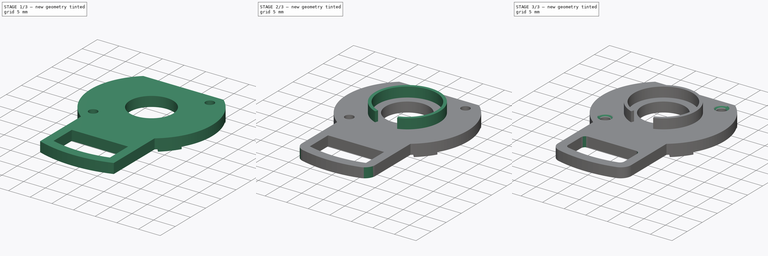
[diagram: build sequence overview — one tinted view per stage of 3, left to right]
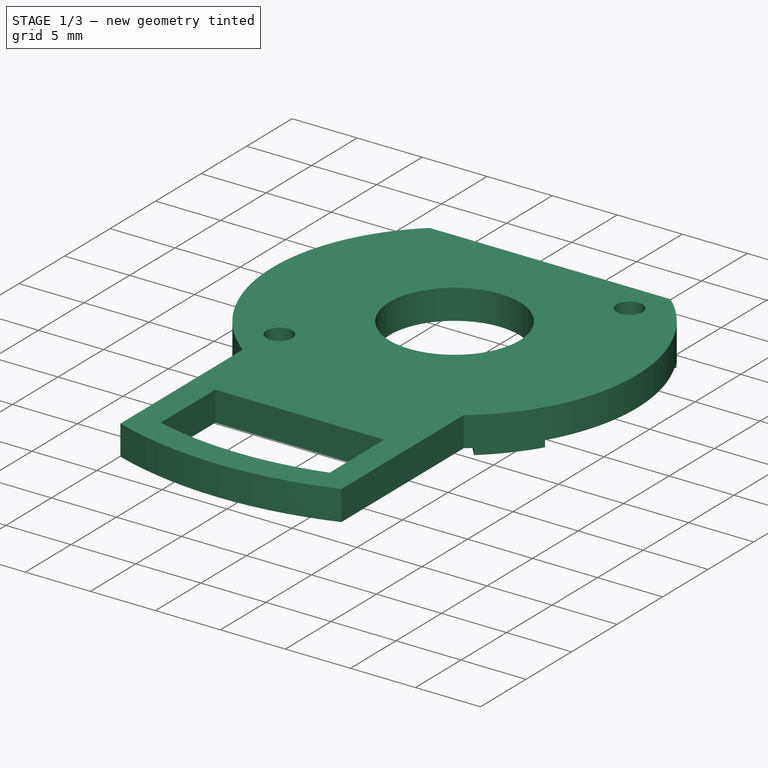
[diagram: stage 1 of 3 — iso view after this stage's code; geometry added in this stage tinted green]
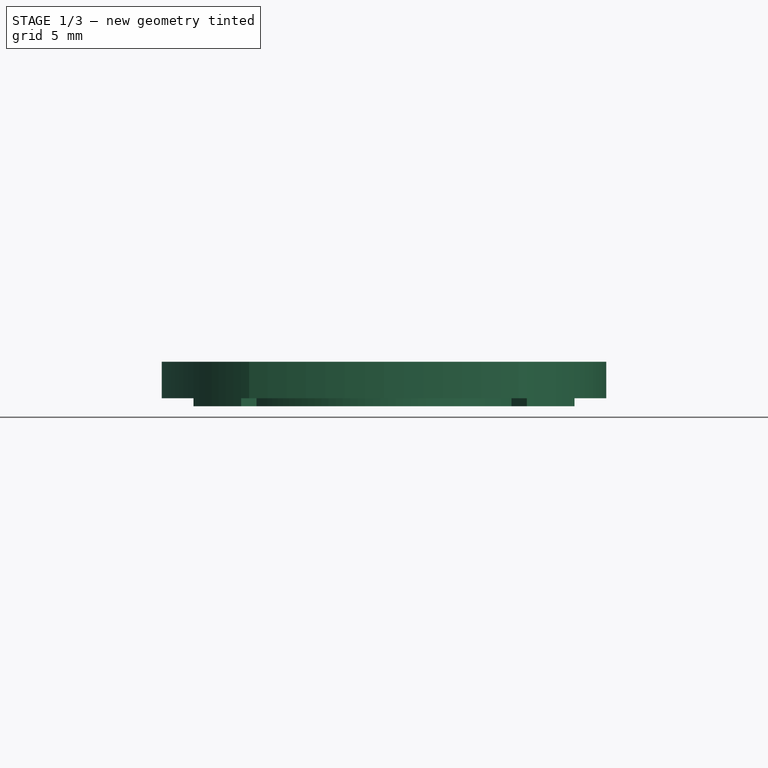
[diagram: stage 1 of 3 — front view after this stage's code; geometry added in this stage tinted green]
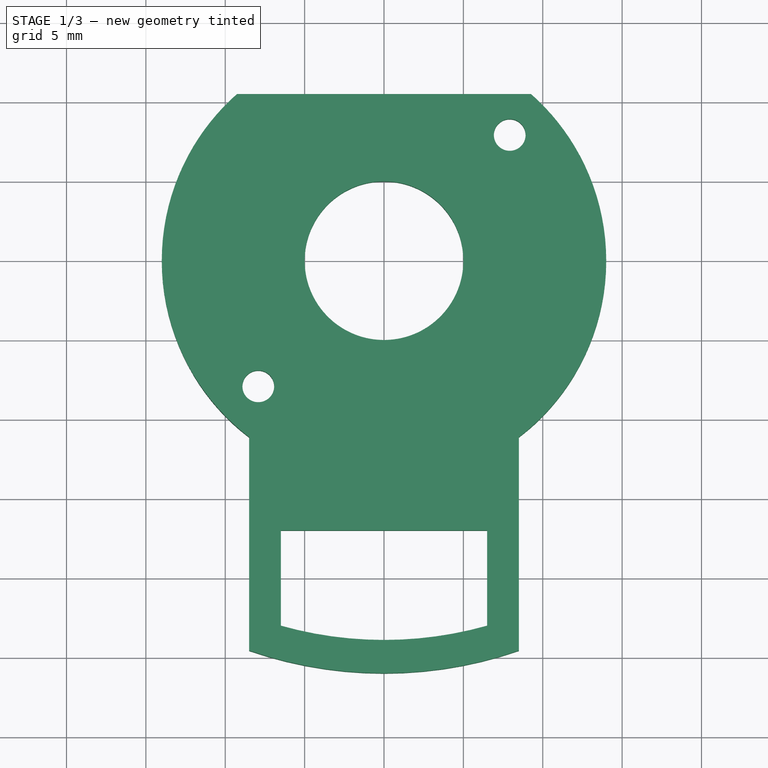
[diagram: stage 1 of 3 — top view after this stage's code; geometry added in this stage tinted green]
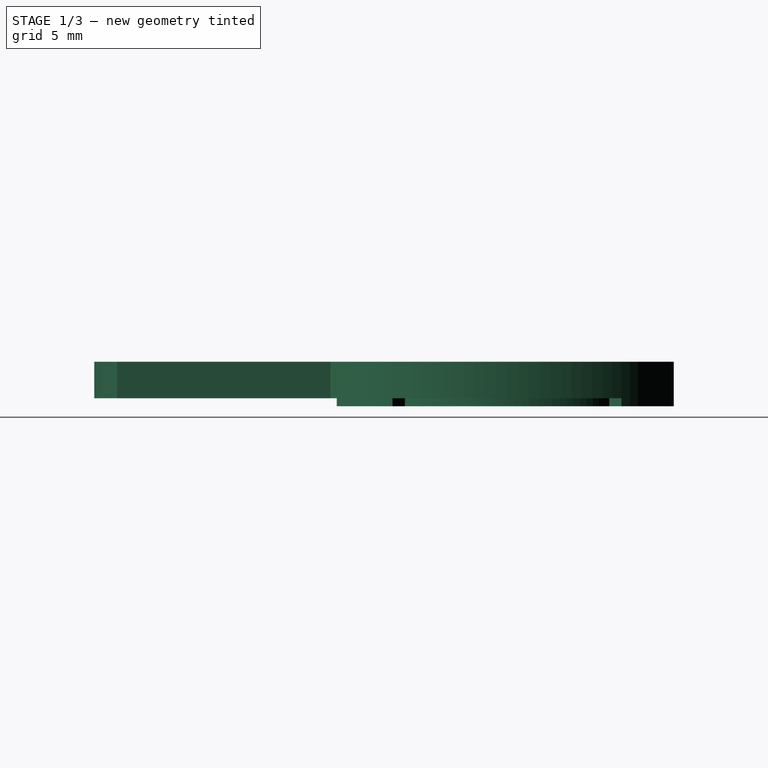
[diagram: stage 1 of 3 — right view after this stage's code; geometry added in this stage tinted green]
FCSTD DOCUMENT  (FreeCAD 0.20R27936 (Git))
Label: FP01-WDK02
License: All rights reserved
LicenseURL: http://en.wikipedia.org/wiki/All_rights_reserved
objects: Sketcher::SketchObject×4, PartDesign::Pad×3, PartDesign::Fillet×2, Part::Part2DObjectPython×1, PartDesign::Chamfer×1, PartDesign::Body×1, Part::Refine×1
note: 19 computed .brp shape members not serialized (recipe doc carries the construction recipe); baked Part::Feature solids carry a one-line shape summary decoded from their .brp

FEATURE [Sketcher::SketchObject] Sketch  label="Master Sketch"
  FullyConstrained = false
  sketch-geometry (26):
    g0: Circle CenterX=0 CenterY=0 CenterZ=0 NormalX=0 NormalY=0 NormalZ=1 AngleXU=0 Radius=14
    g1: Circle CenterX=0 CenterY=0 CenterZ=0 NormalX=0 NormalY=0 NormalZ=1 AngleXU=0 Radius=12.5
    g2: Circle CenterX=0 CenterY=0 CenterZ=0 NormalX=0 NormalY=0 NormalZ=1 AngleXU=0 Radius=9.6
    g3: Circle CenterX=0 CenterY=0 CenterZ=0 NormalX=0 NormalY=0 NormalZ=1 AngleXU=0 Radius=8.6
    g4: Circle CenterX=0 CenterY=0 CenterZ=0 NormalX=0 NormalY=0 NormalZ=1 AngleXU=0 Radius=5
    g5: Circle CenterX=0 CenterY=0 CenterZ=0 NormalX=0 NormalY=0 NormalZ=1 AngleXU=0 Radius=7.5
    g6: LineSegment StartX=-8.5 StartY=-11.1243 StartZ=0 EndX=-8.5 EndY=-24.5713 EndZ=0
    g7: LineSegment StartX=8.5 StartY=-24.5713 StartZ=0 EndX=8.5 EndY=-11.1243 EndZ=0
    g8: ArcOfCircle CenterX=0 CenterY=0 CenterZ=0 NormalX=0 NormalY=0 NormalZ=1 AngleXU=0 Radius=26 StartAngle=4.37934 EndAngle=5.04543
    g9: ArcOfCircle CenterX=0 CenterY=0 CenterZ=0 NormalX=0 NormalY=0 NormalZ=1 AngleXU=0 Radius=23.9 StartAngle=4.43695 EndAngle=4.98782
    g10: LineSegment StartX=-6.5 StartY=-22.9991 StartZ=0 EndX=-6.5 EndY=-17 EndZ=0
    g11: LineSegment StartX=-6.5 StartY=-17 StartZ=0 EndX=6.5 EndY=-17 EndZ=0
    g12: LineSegment StartX=6.5 StartY=-17 StartZ=0 EndX=6.5 EndY=-22.9991 EndZ=0
    g13: LineSegment StartX=-9.26013 StartY=10.5 StartZ=0 EndX=9.26013 EndY=10.5 EndZ=0
    g14: Circle CenterX=7.91958 CenterY=7.91961 CenterZ=0 NormalX=0 NormalY=0 NormalZ=1 AngleXU=0 Radius=1
    g15: Circle CenterX=-7.91958 CenterY=-7.91961 CenterZ=0 NormalX=0 NormalY=0 NormalZ=1 AngleXU=0 Radius=1
    g16: LineSegment StartX=0 StartY=0 StartZ=0 EndX=7.91958 EndY=7.91961 EndZ=0
    g17: LineSegment StartX=-12 StartY=7.2111 StartZ=0 EndX=0 EndY=-9e-16 EndZ=0
    g18: LineSegment StartX=0 StartY=0 StartZ=0 EndX=12 EndY=7.2111 EndZ=0
    g19: LineSegment StartX=0 StartY=0 StartZ=0 EndX=-12 EndY=-7.2111 EndZ=0
    g20: LineSegment StartX=0 StartY=0 StartZ=0 EndX=12 EndY=-7.2111 EndZ=0
    g21: LineSegment StartX=0 StartY=0 StartZ=0 EndX=9 EndY=-10.7238 EndZ=0
    g22: LineSegment StartX=0 StartY=0 StartZ=0 EndX=-9 EndY=-10.7238 EndZ=0
    g23: Circle CenterX=0 CenterY=0 CenterZ=0 NormalX=0 NormalY=0 NormalZ=1 AngleXU=0 Radius=6.8
    g24: LineSegment StartX=0 StartY=0 StartZ=0 EndX=-2.56515 EndY=-7.04769 EndZ=0
    g25: LineSegment StartX=0 StartY=0 StartZ=0 EndX=2.56515 EndY=-7.04769 EndZ=0
  constraints (64):
    c: Coincident(g0,g-1)
    c: Diameter(g0) = 28
    c: Coincident(g1,g0)
    c: Diameter(g1) = 25
    c: Coincident(g2,g0)
    c: Coincident(g3,g0)
    c: Diameter(g2) = 19.2
    c: Diameter(g3) = 17.2
    c: Coincident(g4,g0)
    c: Coincident(g5,g0)
    c: Diameter(g4) = 10
    c: Diameter(g5) = 15
    c: PointOnObject(g6,g0)
    c: Vertical(g6)
    c: PointOnObject(g7,g0)
    c: Vertical(g7)
    c: Equal(g6,g7)
    c: Coincident(g8,g0)
    c: Coincident(g8,g6)
    c: Coincident(g8,g7)
    c: Coincident(g9,g0)
    c: DistanceX(g6,g7) = 17
    c: Radius(g8) = 26
    c: Radius(g9) = 23.9
    c: Coincident(g10,g9)
    c: Vertical(g10)
    c: Coincident(g11,g10)
    c: Coincident(g12,g11)
    c: Coincident(g12,g9)
    c: Vertical(g12)
    c: Symmetric(g11,g10,g-2)
    c: DistanceX(g9,g9) = 13
    c: DistanceY(g10,g0) = 17
    c: PointOnObject(g13,g0)
    c: Horizontal(g13)
    c: PointOnObject(g13,g0)
    c: DistanceY(g0,g13) = 10.5
    c: Symmetric(g14,g15,g0)
    c: Equal(g14,g15)
    c: Diameter(g14) = 2
    c: Coincident(g16,g0)
    c: Coincident(g16,g14)
    c: Distance(g14,g15) = 22.4
    c: PointOnObject(g17,g0)
    c: Coincident(g17,g0)
    c: Coincident(g18,g0)
    c: Symmetric(g18,g17,g-2)
    c: Coincident(g19,g0)
    c: Coincident(g20,g0)
    c: Symmetric(g20,g18,g-1)
    c: Symmetric(g19,g17,g-1)
    c: Coincident(g21,g0)
    c: PointOnObject(g21,g0)
    c: Coincident(g22,g0)
    c: Symmetric(g21,g22,g-2)
    c: DistanceX(g22,g21) = 18
    c: DistanceX(g17,g18) = 24
    c: Coincident(g23,g0)
    c: Diameter(g23) = 13.6
    c: Coincident(g24,g0)
    c: PointOnObject(g24,g5)
    c: Coincident(g25,g0)
    c: Symmetric(g25,g24,g-2)
    c: Angle(g24,g25) = 0.698132
FEATURE [Part::Part2DObjectPython] Clone2D  label="Master Sketch (2D)"  # Draft 2D object (typed FeaturePython)
  Fuse = false
  Objects = -> [Sketch]
  Scale = (1,1,1)
FEATURE [Sketcher::SketchObject] Sketch001
  ExternalGeometry = -> [Clone2D]
  FullyConstrained = true
  MapMode = 5
  Support = -> [XY_Plane]
  sketch-geometry (13):
    g0: LineSegment StartX=-9.26013 StartY=10.5 StartZ=0 EndX=9.26013 EndY=10.5 EndZ=0
    g1: ArcOfCircle CenterX=0 CenterY=0 CenterZ=0 NormalX=0 NormalY=0 NormalZ=1 AngleXU=0 Radius=14 StartAngle=2.29353 EndAngle=4.05993
    g2: ArcOfCircle CenterX=0 CenterY=0 CenterZ=0 NormalX=0 NormalY=0 NormalZ=1 AngleXU=0 Radius=14 StartAngle=5.36485 EndAngle=7.13125
    g3: LineSegment StartX=-8.5 StartY=-11.1243 StartZ=0 EndX=-8.5 EndY=-24.5713 EndZ=0
    g4: LineSegment StartX=8.5 StartY=-24.5713 StartZ=0 EndX=8.5 EndY=-11.1243 EndZ=0
    g5: ArcOfCircle CenterX=0 CenterY=0 CenterZ=0 NormalX=0 NormalY=0 NormalZ=1 AngleXU=0 Radius=26 StartAngle=4.37934 EndAngle=5.04543
    g6: ArcOfCircle CenterX=0 CenterY=0 CenterZ=0 NormalX=0 NormalY=0 NormalZ=1 AngleXU=0 Radius=23.9 StartAngle=4.43695 EndAngle=4.98782
    g7: LineSegment StartX=-6.5 StartY=-22.9991 StartZ=0 EndX=-6.5 EndY=-17 EndZ=0
    g8: LineSegment StartX=-6.5 StartY=-17 StartZ=0 EndX=6.5 EndY=-17 EndZ=0
    g9: LineSegment StartX=6.5 StartY=-17 StartZ=0 EndX=6.5 EndY=-22.9991 EndZ=0
    g10: Circle CenterX=0 CenterY=0 CenterZ=0 NormalX=0 NormalY=0 NormalZ=1 AngleXU=0 Radius=5
    g11: Circle CenterX=7.91958 CenterY=7.91961 CenterZ=0 NormalX=0 NormalY=0 NormalZ=1 AngleXU=0 Radius=1
    g12: Circle CenterX=-7.91958 CenterY=-7.91961 CenterZ=0 NormalX=0 NormalY=0 NormalZ=1 AngleXU=0 Radius=1
  constraints (30):
    c: Coincident(g0,g-3)
    c: Coincident(g0,g-3)
    c: Coincident(g1,g-1)
    c: Coincident(g1,g-4)
    c: Coincident(g1,g0)
    c: Coincident(g2,g1)
    c: Coincident(g2,g-5)
    c: Coincident(g2,g0)
    c: Coincident(g3,g1)
    c: Coincident(g3,g-4)
    c: Coincident(g4,g-5)
    c: Coincident(g4,g2)
    c: Coincident(g5,g1)
    c: Coincident(g5,g4)
    c: Coincident(g5,g3)
    c: Coincident(g6,g1)
    c: Coincident(g6,g-6)
    c: Coincident(g6,g-7)
    c: Coincident(g7,g6)
    c: Coincident(g7,g-7)
    c: Coincident(g8,g7)
    c: Coincident(g8,g-6)
    c: Coincident(g9,g8)
    c: Coincident(g9,g6)
    c: Coincident(g10,g1)
    c: Equal(g10,g-8)
    c: Coincident(g11,g-9)
    c: Equal(g-9,g11)
    c: Coincident(g12,g-10)
    c: Equal(g-10,g12)
FEATURE [PartDesign::Pad] Pad
  Direction = (0,0,1)
  Length = 2.3
  Length2 = 10
  Profile = -> Sketch001
  ReferenceAxis = -> Sketch001 [N_Axis]
  Reversed = true
  Type = 0
FEATURE [Sketcher::SketchObject] Sketch002
  ExternalGeometry = -> [Clone2D]
  FullyConstrained = true
  MapMode = 5
  Support = -> [XY_Plane]
  sketch-geometry (18):
    g0: ArcOfCircle CenterX=0 CenterY=0 CenterZ=0 NormalX=0 NormalY=0 NormalZ=1 AngleXU=0 Radius=14 StartAngle=2.29353 EndAngle=2.60049
    g1: ArcOfCircle CenterX=0 CenterY=0 CenterZ=0 NormalX=0 NormalY=0 NormalZ=1 AngleXU=0 Radius=14 StartAngle=0.5411 EndAngle=0.848062
    g2: ArcOfCircle CenterX=0 CenterY=0 CenterZ=0 NormalX=0 NormalY=0 NormalZ=1 AngleXU=0 Radius=12.5 StartAngle=2.14431 EndAngle=2.60049
    g3: ArcOfCircle CenterX=0 CenterY=0 CenterZ=0 NormalX=0 NormalY=0 NormalZ=1 AngleXU=0 Radius=12.5 StartAngle=0.5411 EndAngle=0.997283
    g4: LineSegment StartX=-9.26013 StartY=10.5 StartZ=0 EndX=-6.78233 EndY=10.5 EndZ=0
    g5: LineSegment StartX=-12 StartY=7.2111 StartZ=0 EndX=-10.7143 EndY=6.43848 EndZ=0
    g6: LineSegment StartX=6.78233 StartY=10.5 StartZ=0 EndX=9.26013 EndY=10.5 EndZ=0
    g7: LineSegment StartX=12 StartY=7.2111 StartZ=0 EndX=10.7143 EndY=6.43848 EndZ=0
    g8: Circle CenterX=0 CenterY=0 CenterZ=0 NormalX=0 NormalY=0 NormalZ=1 AngleXU=0 Radius=9.6
    g9: Circle CenterX=0 CenterY=0 CenterZ=0 NormalX=0 NormalY=0 NormalZ=1 AngleXU=0 Radius=8.6
    g10: ArcOfCircle CenterX=0 CenterY=0 CenterZ=0 NormalX=0 NormalY=0 NormalZ=1 AngleXU=0 Radius=14 StartAngle=5.41061 EndAngle=5.74209
    g11: ArcOfCircle CenterX=0 CenterY=0 CenterZ=0 NormalX=0 NormalY=0 NormalZ=1 AngleXU=0 Radius=14 StartAngle=3.68269 EndAngle=4.01417
    g12: ArcOfCircle CenterX=0 CenterY=0 CenterZ=0 NormalX=0 NormalY=0 NormalZ=1 AngleXU=0 Radius=12.5 StartAngle=3.68269 EndAngle=4.01417
    g13: ArcOfCircle CenterX=0 CenterY=0 CenterZ=0 NormalX=0 NormalY=0 NormalZ=1 AngleXU=0 Radius=12.5 StartAngle=5.41061 EndAngle=5.74209
    g14: LineSegment StartX=-12 StartY=-7.2111 StartZ=0 EndX=-10.7143 EndY=-6.43848 EndZ=0
    g15: LineSegment StartX=-9 StartY=-10.7238 StartZ=0 EndX=-8.03571 EndY=-9.57483 EndZ=0
    g16: LineSegment StartX=8.03571 StartY=-9.57483 StartZ=0 EndX=9 EndY=-10.7238 EndZ=0
    g17: LineSegment StartX=10.7143 StartY=-6.43848 StartZ=0 EndX=12 EndY=-7.2111 EndZ=0
  constraints (48):
    c: Coincident(g0,g-13)
    c: Coincident(g0,g-11)
    c: Coincident(g0,g-5)
    c: Coincident(g1,g0)
    c: Coincident(g1,g-5)
    c: Coincident(g1,g-6)
    c: Coincident(g2,g0)
    c: PointOnObject(g2,g-4)
    c: PointOnObject(g2,g-5)
    c: PointOnObject(g2,g-11)
    c: Coincident(g3,g0)
    c: PointOnObject(g3,g-6)
    c: PointOnObject(g3,g-4)
    c: PointOnObject(g3,g-5)
    c: Coincident(g4,g0)
    c: Coincident(g4,g2)
    c: Coincident(g5,g0)
    c: Coincident(g5,g2)
    c: Coincident(g6,g3)
    c: Coincident(g6,g1)
    c: Coincident(g7,g1)
    c: Coincident(g7,g3)
    c: Coincident(g8,g0)
    c: Coincident(g9,g0)
    c: Equal(g9,g-13)
    c: Equal(g-12,g8)
    c: Coincident(g10,g0)
    c: Coincident(g10,g-8)
    c: Coincident(g10,g-7)
    c: Coincident(g11,g0)
    c: Coincident(g11,g-10)
    c: Coincident(g11,g-9)
    c: Coincident(g12,g0)
    c: PointOnObject(g12,g-4)
    c: PointOnObject(g12,g-9)
    c: Coincident(g13,g0)
    c: PointOnObject(g13,g-8)
    c: PointOnObject(g13,g-4)
    c: PointOnObject(g13,g-7)
    c: PointOnObject(g12,g-10)
    c: Coincident(g14,g11)
    c: Coincident(g14,g12)
    c: Coincident(g15,g11)
    c: Coincident(g15,g12)
    c: Coincident(g16,g13)
    c: Coincident(g16,g10)
    c: Coincident(g17,g13)
    c: Coincident(g17,g10)
FEATURE [PartDesign::Pad] Pad001
  BaseFeature = -> Pad
  Direction = (0,0,1)
  Length = 2.8
  Length2 = 10
  Profile = -> Sketch002
  ReferenceAxis = -> Sketch002 [N_Axis]
  Reversed = true
  Type = 0
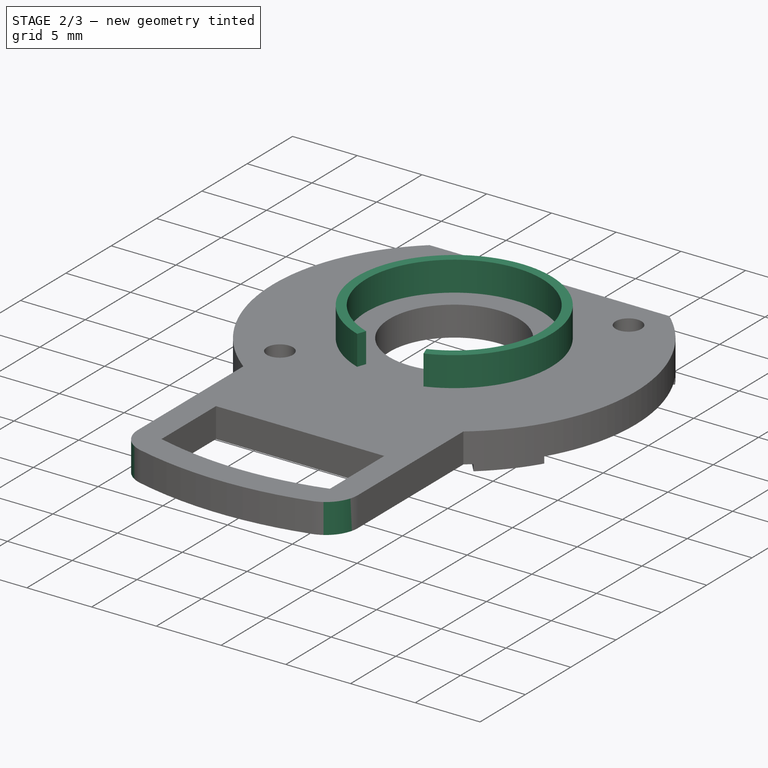
[diagram: stage 2 of 3 — iso view after this stage's code; geometry added in this stage tinted green]
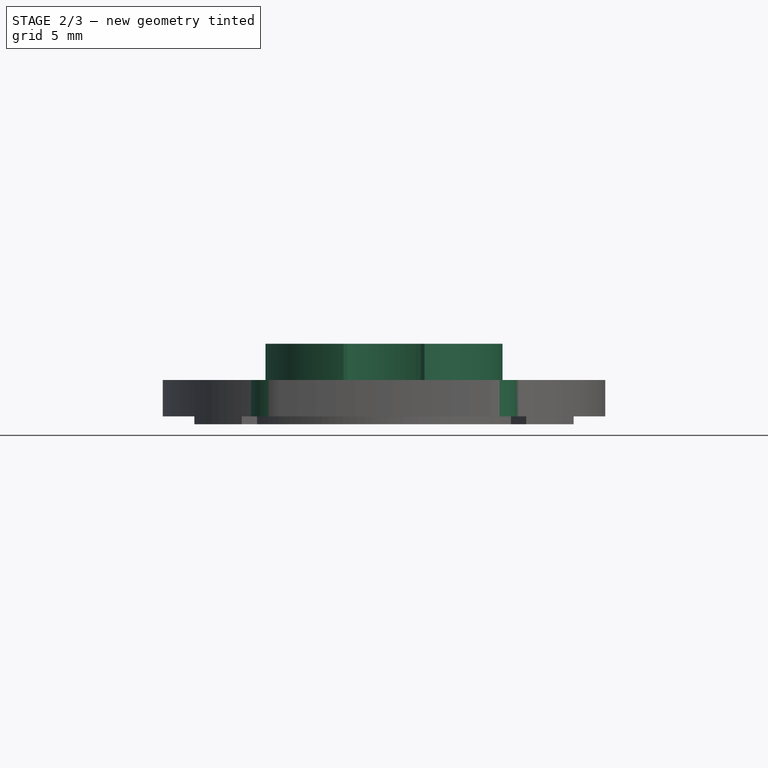
[diagram: stage 2 of 3 — front view after this stage's code; geometry added in this stage tinted green]
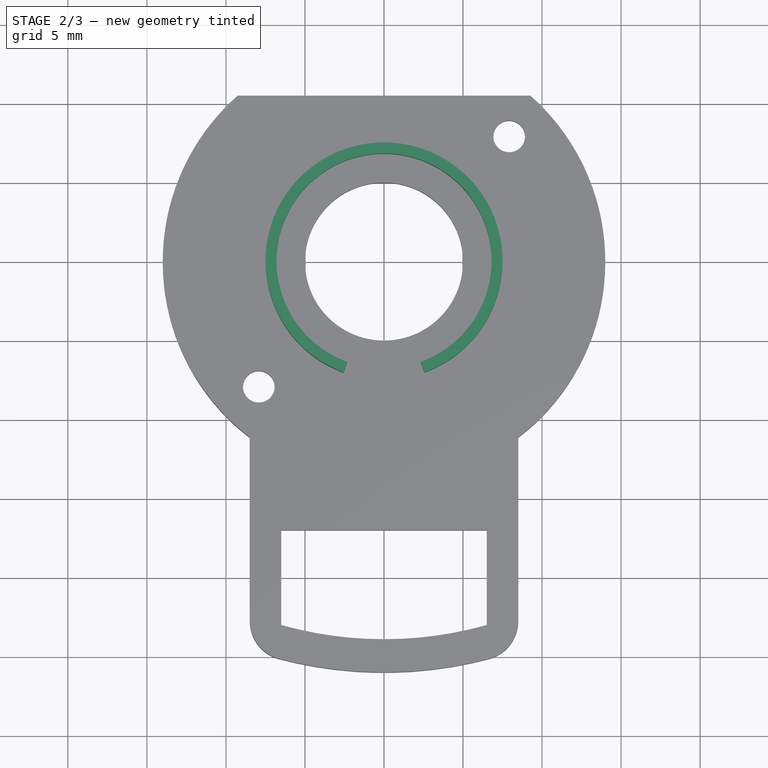
[diagram: stage 2 of 3 — top view after this stage's code; geometry added in this stage tinted green]
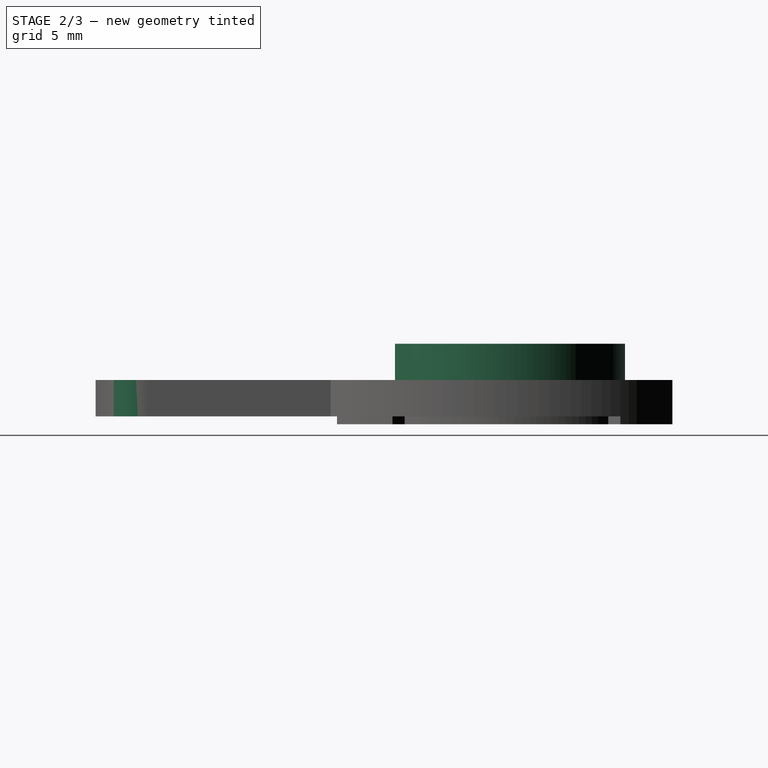
[diagram: stage 2 of 3 — right view after this stage's code; geometry added in this stage tinted green]
FEATURE [Sketcher::SketchObject] Sketch003
  ExternalGeometry = -> [Clone2D]
  FullyConstrained = true
  MapMode = 5
  Support = -> [XY_Plane]
  sketch-geometry (4):
    g0: ArcOfCircle CenterX=0 CenterY=0 CenterZ=0 NormalX=0 NormalY=0 NormalZ=1 AngleXU=0 Radius=7.5 StartAngle=5.06145 EndAngle=10.6465
    g1: ArcOfCircle CenterX=0 CenterY=0 CenterZ=0 NormalX=0 NormalY=0 NormalZ=1 AngleXU=0 Radius=6.8 StartAngle=5.06145 EndAngle=10.6465
    g2: LineSegment StartX=-2.56515 StartY=-7.04769 StartZ=0 EndX=-2.32574 EndY=-6.38991 EndZ=0
    g3: LineSegment StartX=2.56515 StartY=-7.04769 StartZ=0 EndX=2.32574 EndY=-6.38991 EndZ=0
  constraints (11):
    c: Coincident(g0,g-6)
    c: Coincident(g0,g-6)
    c: Coincident(g0,g-5)
    c: Coincident(g1,g0)
    c: PointOnObject(g1,g-4)
    c: PointOnObject(g1,g-5)
    c: PointOnObject(g1,g-6)
    c: Coincident(g2,g0)
    c: Coincident(g2,g1)
    c: Coincident(g3,g0)
    c: Coincident(g3,g1)
FEATURE [PartDesign::Pad] Pad002
  BaseFeature = -> Pad001
  Direction = (0,0,1)
  Length = 2.3
  Length2 = 10
  Profile = -> Sketch003
  ReferenceAxis = -> Sketch003 [N_Axis]
  Type = 0
FEATURE [PartDesign::Fillet] Fillet
  Base = -> Pad002 [Edge78,Edge77]
  BaseFeature = -> Pad002
  Radius = 2.5
  SupportTransform = false
  UseAllEdges = false
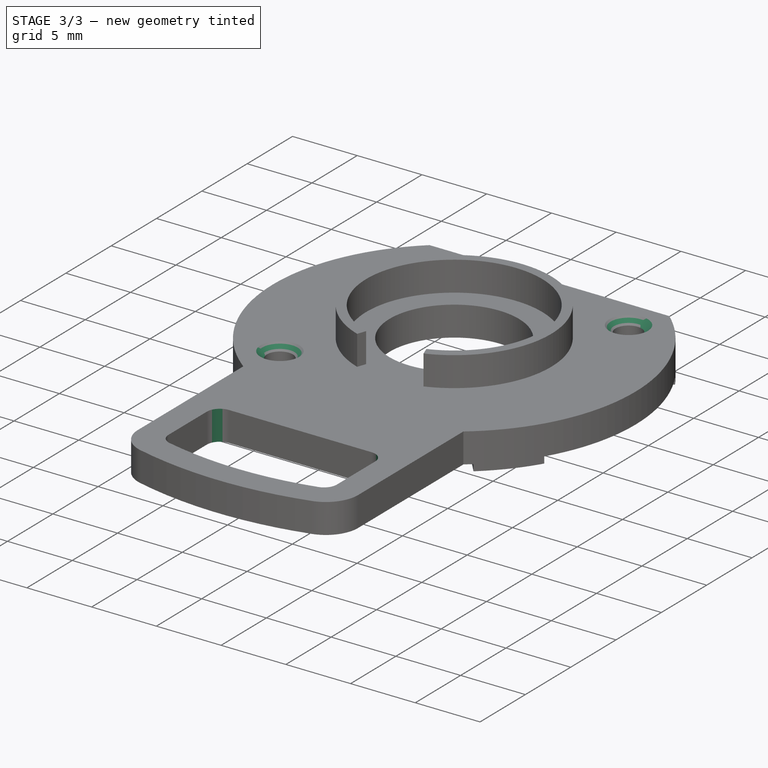
[diagram: stage 3 of 3 — iso view after this stage's code; geometry added in this stage tinted green]
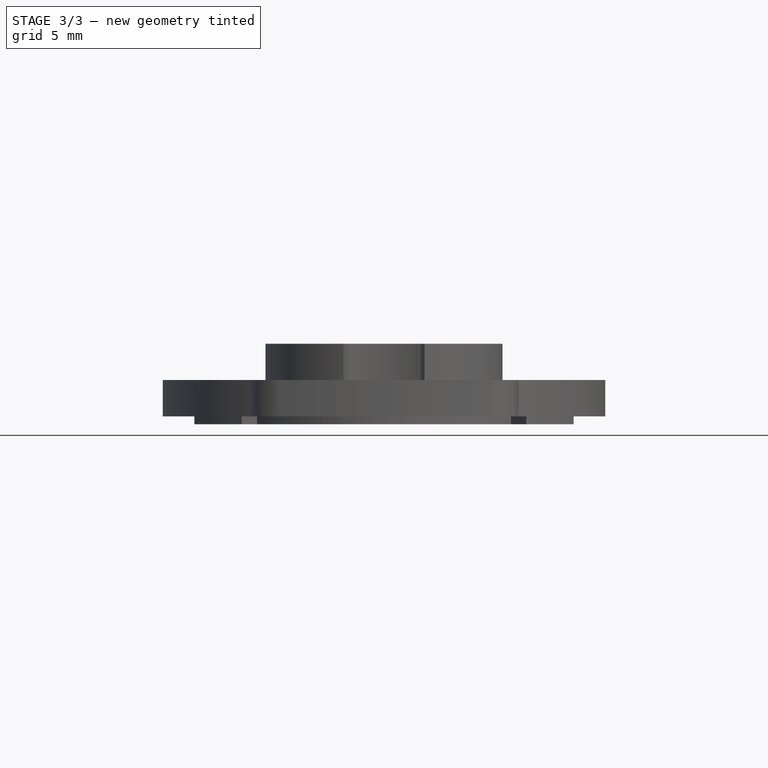
[diagram: stage 3 of 3 — front view after this stage's code; geometry added in this stage tinted green]
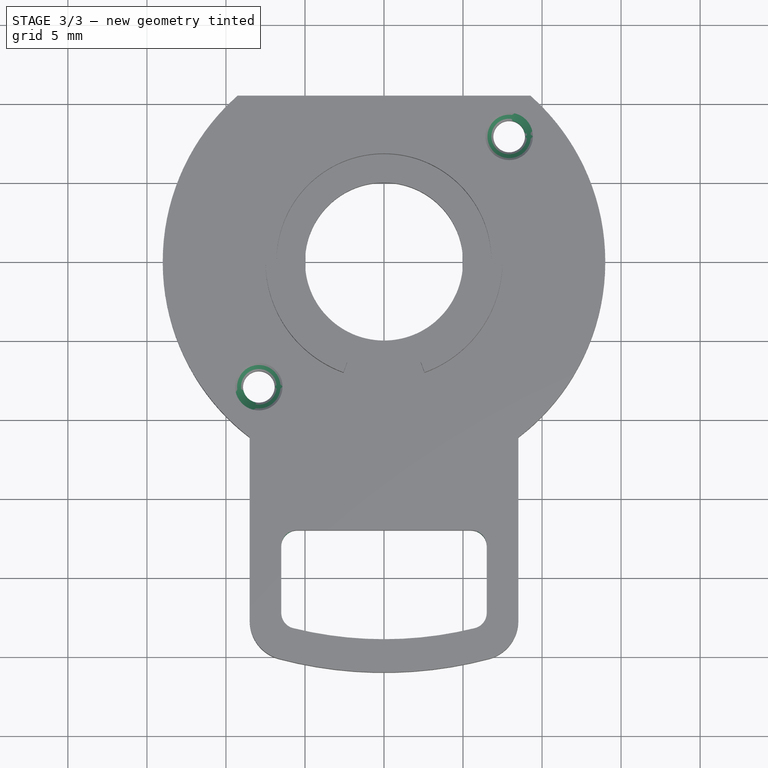
[diagram: stage 3 of 3 — top view after this stage's code; geometry added in this stage tinted green]
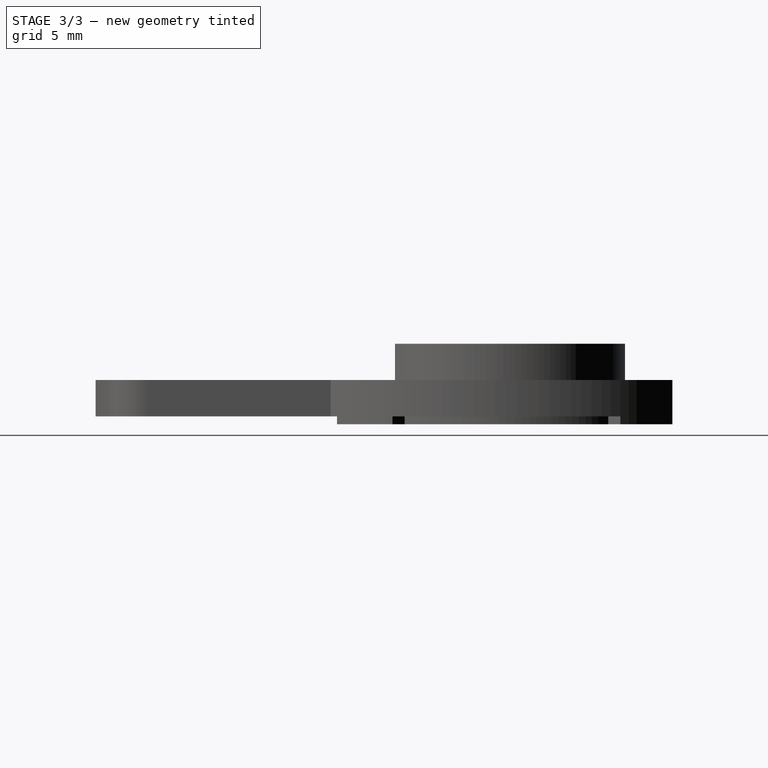
[diagram: stage 3 of 3 — right view after this stage's code; geometry added in this stage tinted green]
FEATURE [PartDesign::Fillet] Fillet001
  Base = -> Fillet [Edge63,Edge65,Edge60,Edge61]
  BaseFeature = -> Fillet
  Radius = 1
  SupportTransform = false
  UseAllEdges = false
FEATURE [PartDesign::Chamfer] Chamfer
  Angle = 45
  Base = -> Fillet001 [Edge29,Edge31]
  BaseFeature = -> Fillet001
  ChamferType = 0
  FlipDirection = false
  Size = 0.5
  Size2 = 1
  SupportTransform = false
  UseAllEdges = false
FEATURE [PartDesign::Body] Body
  Group = -> [Clone2D,Sketch001,Pad,Sketch002,Pad001,Sketch003,Pad002,Fillet,Fillet001,Chamfer]
  Origin = -> Origin
  Tip = -> Chamfer
FEATURE [Part::Refine] Body001  label="FP01-WDK02"
  Source = -> Body
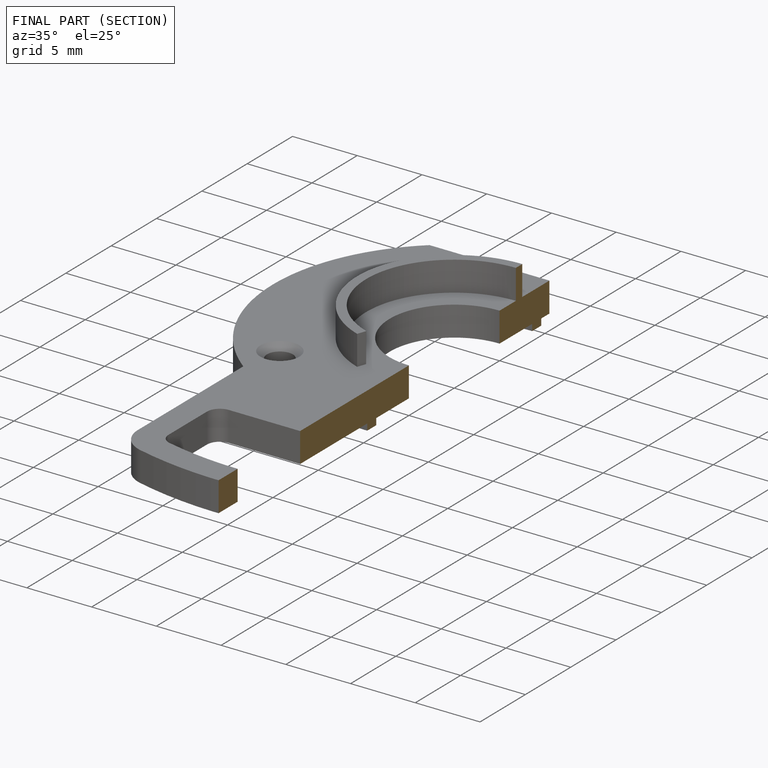
[diagram: finished part — half-section view (interior)]
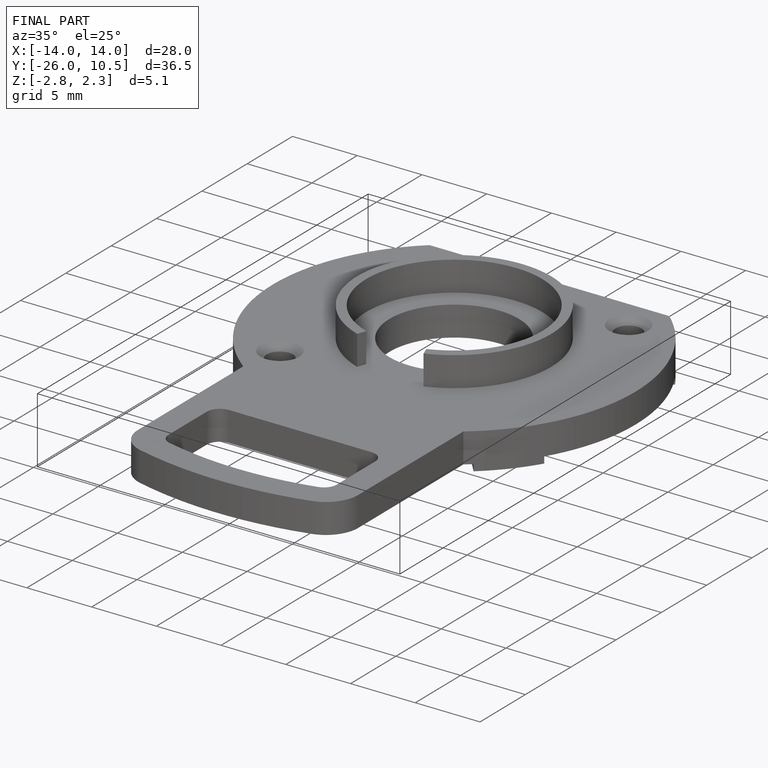
[diagram: finished part — iso view with bounding-box wireframe]
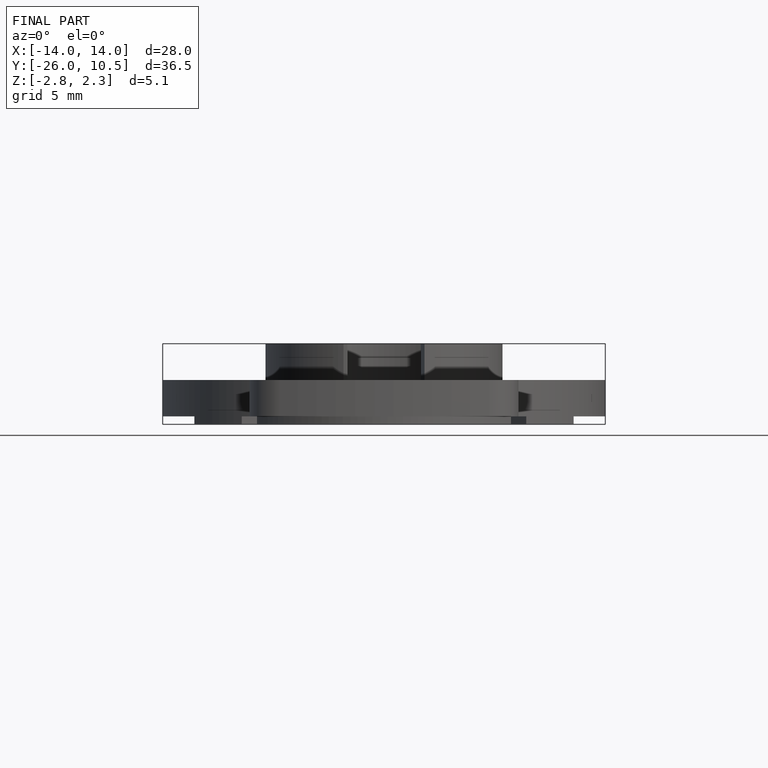
[diagram: finished part — front view with bounding-box wireframe]
